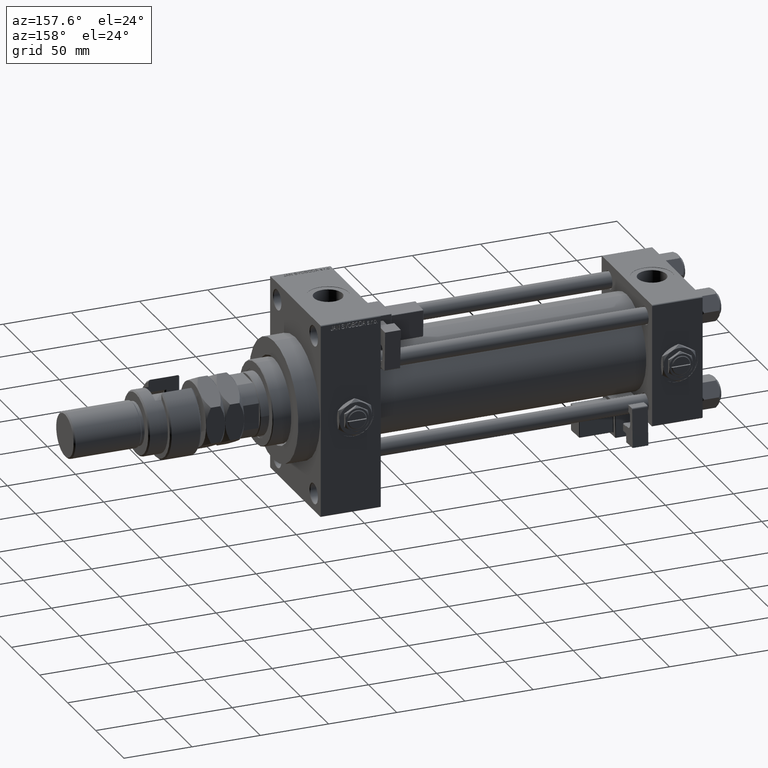
[diagram: clean part render]
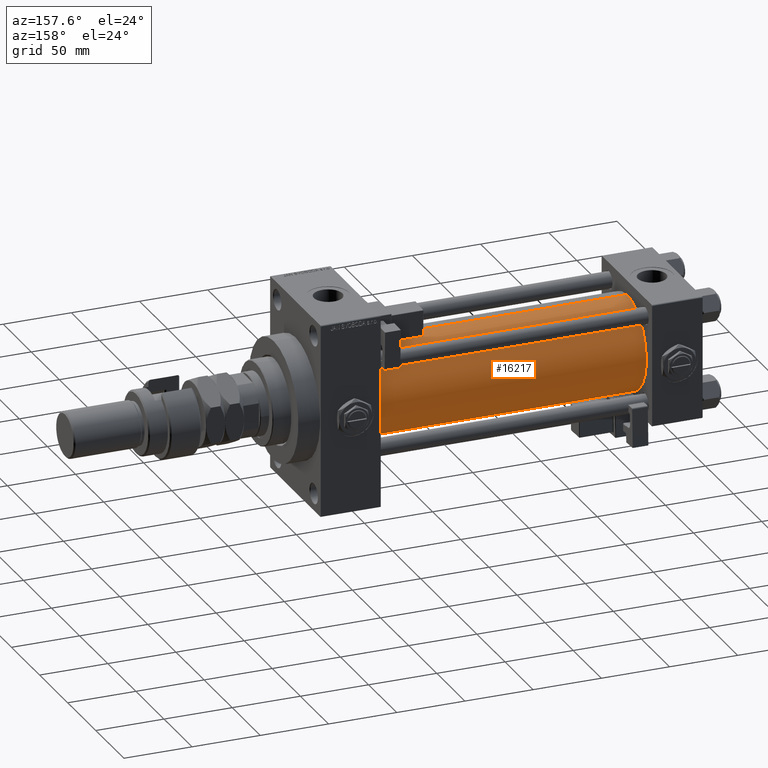
[diagram: same view with one face highlighted and labeled with its STEP entity id]
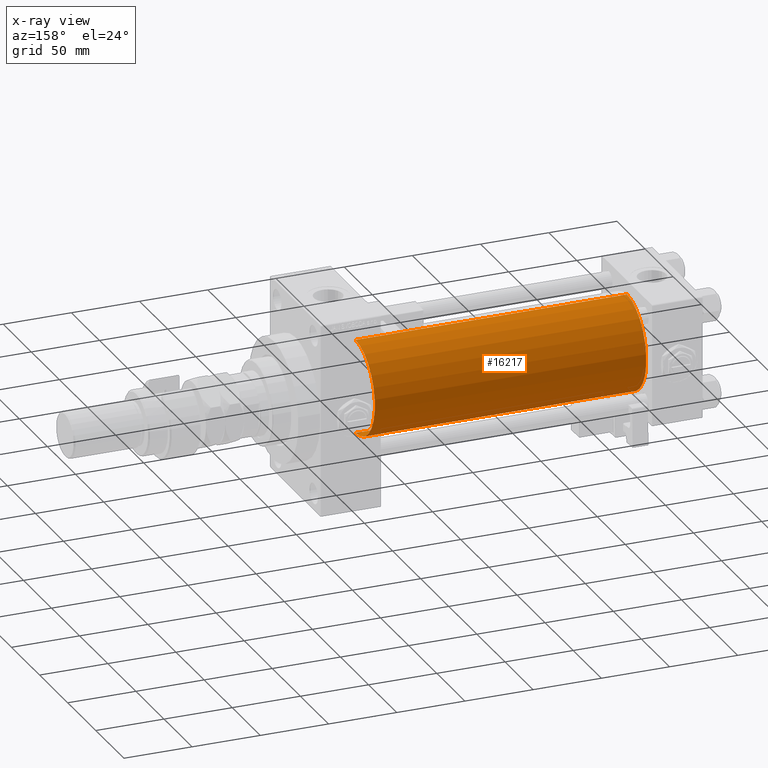
[diagram: x-ray of the same camera — body ghosted, the highlighted face saturated]
A machine part, auxiliary view. The second image highlights one B-rep face of the part: STEP entity #16217.
The next image is the same camera in x-ray: the body ghosted, the highlighted face saturated — about 0% of this face is hidden behind the body in this view.
In plain terms, the highlighted cylindrical surface (partial cylindrical patch) has radius 34.5 mm, axis along (-1, -0, -0).
Its self-contained STEP definition (entity closure, byte-faithful):
#1199 = CARTESIAN_POINT ( 'NONE',  ( 37.00000000000000711, 1.622946243093158675E-15, -34.50000000000000000 ) ) ;
#2481 = DIRECTION ( 'NONE',  ( 0.000000000000000000, 0.000000000000000000, 1.000000000000000000 ) ) ;
#5635 = CIRCLE ( 'NONE', #52189, 34.50000000000000000 ) ;
#6943 = VECTOR ( 'NONE', #46360, 1000.000000000000000 ) ;
#8659 = CARTESIAN_POINT ( 'NONE',  ( 37.00000000000000711, -2.602085213965210642E-15, 34.50000000000000000 ) ) ;
#15977 = EDGE_CURVE ( 'NONE', #27676, #51499, #40305, .T. ) ;
#16217 = ADVANCED_FACE ( 'NONE', ( #26253 ), #17727, .T. ) ;
#17678 = CARTESIAN_POINT ( 'NONE',  ( 236.0000000000000284, 1.622946243093158675E-15, -34.50000000000000000 ) ) ;
#17727 = CYLINDRICAL_SURFACE ( 'NONE', #18267, 34.50000000000000000 ) ;
#18267 = AXIS2_PLACEMENT_3D ( 'NONE', #30657, #34507, #51260 ) ;
#18665 = EDGE_CURVE ( 'NONE', #51151, #40996, #51581, .T. ) ;
#19946 = AXIS2_PLACEMENT_3D ( 'NONE', #27250, #23389, #2481 ) ;
#23389 = DIRECTION ( 'NONE',  ( 1.000000000000000000, -0.000000000000000000, 0.000000000000000000 ) ) ;
#23408 = CARTESIAN_POINT ( 'NONE',  ( 236.0000000000000284, -2.602085213965210642E-15, 34.50000000000000000 ) ) ;
#25199 = ORIENTED_EDGE ( 'NONE', *, *, #52696, .T. ) ;
#26253 = FACE_OUTER_BOUND ( 'NONE', #31664, .T. ) ;
#27250 = CARTESIAN_POINT ( 'NONE',  ( 37.00000000000000711, -2.602085213965210642E-15, 0.000000000000000000 ) ) ;
#27676 = VERTEX_POINT ( 'NONE', #23408 ) ;
#27772 = ORIENTED_EDGE ( 'NONE', *, *, #32726, .F. ) ;
#28781 = VECTOR ( 'NONE', #31808, 1000.000000000000000 ) ;
#29927 = ORIENTED_EDGE ( 'NONE', *, *, #18665, .T. ) ;
#30657 = CARTESIAN_POINT ( 'NONE',  ( 236.0000000000000284, -2.602085213965210642E-15, 0.000000000000000000 ) ) ;
#31664 = EDGE_LOOP ( 'NONE', ( #27772, #29927, #25199, #37898 ) ) ;
#31808 = DIRECTION ( 'NONE',  ( -1.000000000000000000, -0.000000000000000000, -0.000000000000000000 ) ) ;
#32257 = CIRCLE ( 'NONE', #19946, 34.50000000000000000 ) ;
#32726 = EDGE_CURVE ( 'NONE', #51151, #27676, #5635, .T. ) ;
#34507 = DIRECTION ( 'NONE',  ( -1.000000000000000000, -0.000000000000000000, -0.000000000000000000 ) ) ;
#37898 = ORIENTED_EDGE ( 'NONE', *, *, #15977, .F. ) ;
#40305 = LINE ( 'NONE', #52133, #28781 ) ;
#40996 = VERTEX_POINT ( 'NONE', #1199 ) ;
#46276 = CARTESIAN_POINT ( 'NONE',  ( 236.0000000000000284, -2.602085213965210642E-15, 0.000000000000000000 ) ) ;
#46360 = DIRECTION ( 'NONE',  ( -1.000000000000000000, -0.000000000000000000, -0.000000000000000000 ) ) ;
#50486 = CARTESIAN_POINT ( 'NONE',  ( 236.0000000000000284, 1.622946243093158675E-15, -34.50000000000000000 ) ) ;
#50675 = DIRECTION ( 'NONE',  ( 0.000000000000000000, 0.000000000000000000, -1.000000000000000000 ) ) ;
#50947 = DIRECTION ( 'NONE',  ( 1.000000000000000000, 0.000000000000000000, 0.000000000000000000 ) ) ;
#51151 = VERTEX_POINT ( 'NONE', #17678 ) ;
#51260 = DIRECTION ( 'NONE',  ( 0.000000000000000000, 0.000000000000000000, 1.000000000000000000 ) ) ;
#51499 = VERTEX_POINT ( 'NONE', #8659 ) ;
#51581 = LINE ( 'NONE', #50486, #6943 ) ;
#52133 = CARTESIAN_POINT ( 'NONE',  ( 236.0000000000000284, -2.602085213965210642E-15, 34.50000000000000000 ) ) ;
#52189 = AXIS2_PLACEMENT_3D ( 'NONE', #46276, #50947, #50675 ) ;
#52696 = EDGE_CURVE ( 'NONE', #40996, #51499, #32257, .T. ) ;